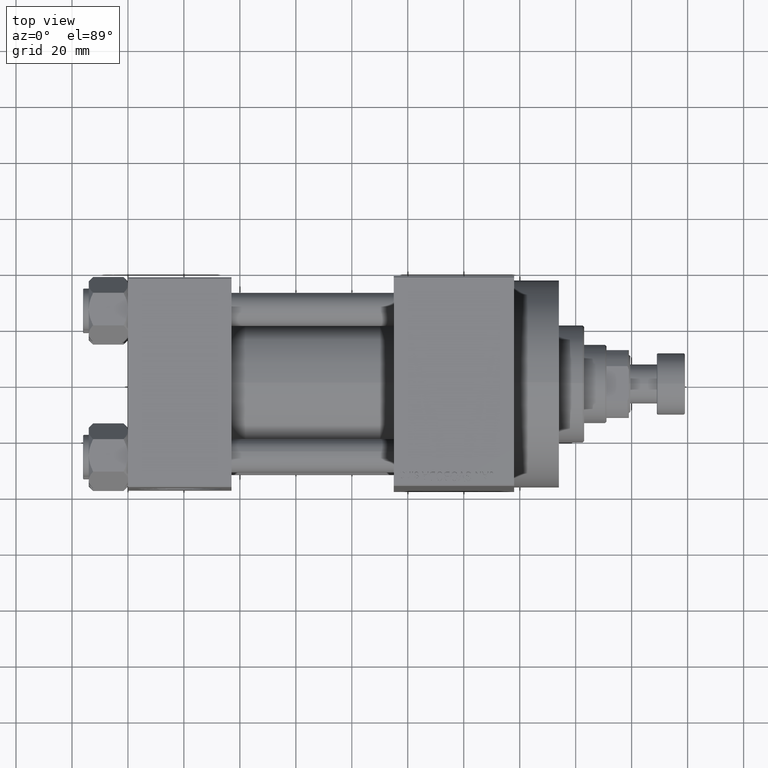
[diagram: clean part render]
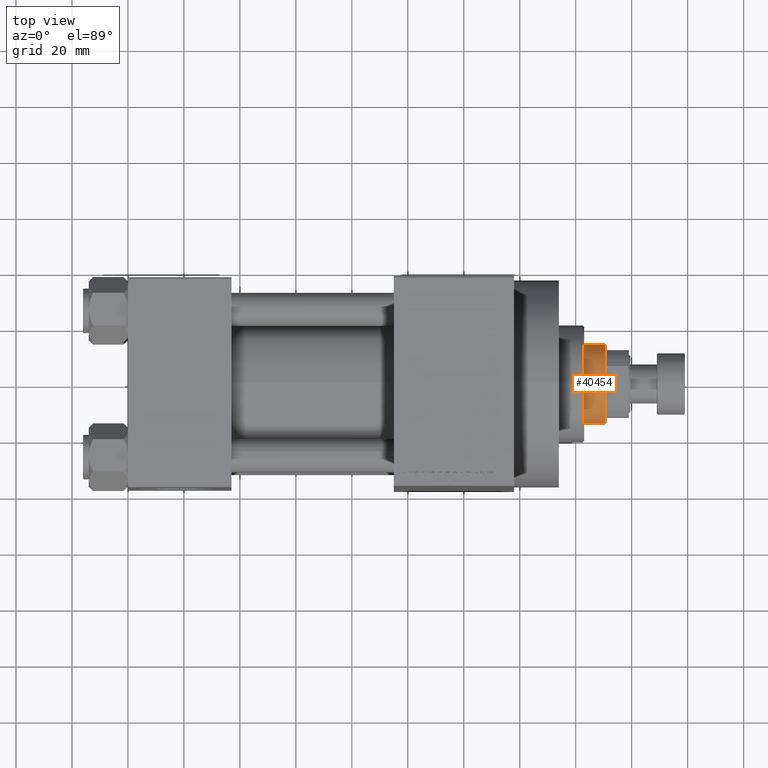
[diagram: same view with one face highlighted and labeled with its STEP entity id]
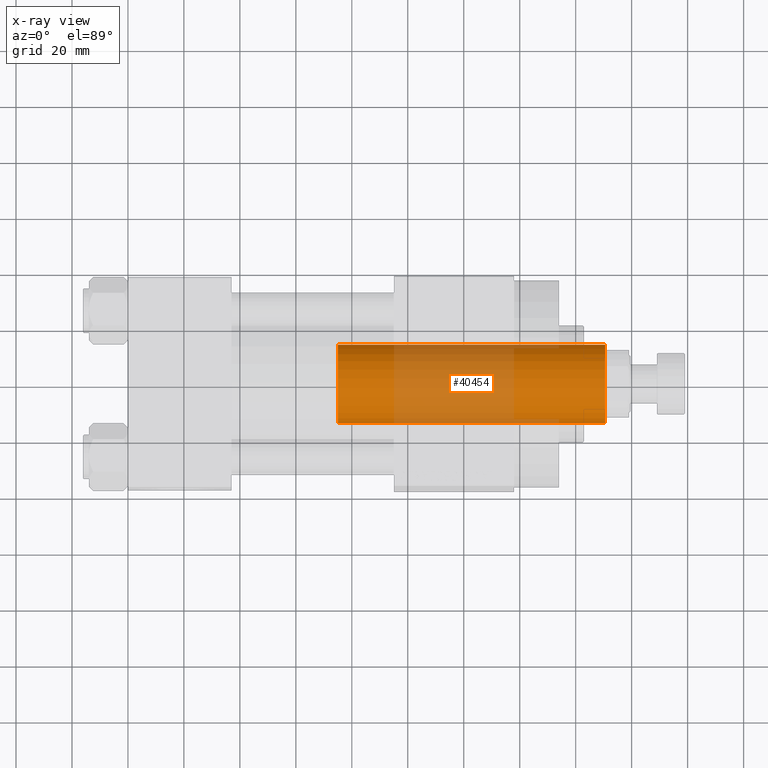
[diagram: x-ray of the same camera — body ghosted, the highlighted face saturated]
A machine part, top view. The second image highlights one B-rep face of the part: STEP entity #40454.
The next image is the same camera in x-ray: the body ghosted, the highlighted face saturated — about 47% of this face is hidden behind the body in this view.
In plain terms, the highlighted cylindrical surface (partial cylindrical patch) has radius 14 mm, axis along (-1, 0, 0).
Its self-contained STEP definition (entity closure, byte-faithful):
#1515 = LINE ( 'NONE', #16281, #11495 ) ;
#2268 = CARTESIAN_POINT ( 'NONE',  ( 0.000000000000000000, 0.000000000000000000, 133.5000000000000284 ) ) ;
#3946 = CARTESIAN_POINT ( 'NONE',  ( 0.000000000000000000, 0.000000000000000000, 38.00000000000000000 ) ) ;
#4250 = CARTESIAN_POINT ( 'NONE',  ( 14.00000000000000178, 1.714505518806294835E-15, 38.00000000000000000 ) ) ;
#5680 = DIRECTION ( 'NONE',  ( 0.000000000000000000, 0.000000000000000000, -1.000000000000000000 ) ) ;
#7015 = EDGE_CURVE ( 'NONE', #45900, #21945, #26740, .T. ) ;
#9244 = VERTEX_POINT ( 'NONE', #36994 ) ;
#9246 = DIRECTION ( 'NONE',  ( -0.000000000000000000, -0.000000000000000000, -1.000000000000000000 ) ) ;
#10929 = FACE_OUTER_BOUND ( 'NONE', #43507, .T. ) ;
#11171 = DIRECTION ( 'NONE',  ( -0.000000000000000000, -0.000000000000000000, -1.000000000000000000 ) ) ;
#11495 = VECTOR ( 'NONE', #9246, 1000.000000000000000 ) ;
#11794 = VECTOR ( 'NONE', #29632, 1000.000000000000000 ) ;
#13169 = AXIS2_PLACEMENT_3D ( 'NONE', #2268, #5680, #42957 ) ;
#13850 = VERTEX_POINT ( 'NONE', #36071 ) ;
#14862 = CARTESIAN_POINT ( 'NONE',  ( -14.00000000000000178, 0.000000000000000000, 134.0000000000000000 ) ) ;
#16281 = CARTESIAN_POINT ( 'NONE',  ( 14.00000000000000178, 1.714505518806294835E-15, 134.0000000000000000 ) ) ;
#21945 = VERTEX_POINT ( 'NONE', #4250 ) ;
#22590 = DIRECTION ( 'NONE',  ( 0.000000000000000000, 0.000000000000000000, 1.000000000000000000 ) ) ;
#24249 = ORIENTED_EDGE ( 'NONE', *, *, #38564, .F. ) ;
#25699 = DIRECTION ( 'NONE',  ( -1.000000000000000000, 0.000000000000000000, 0.000000000000000000 ) ) ;
#26191 = CYLINDRICAL_SURFACE ( 'NONE', #34772, 14.00000000000000178 ) ;
#26307 = EDGE_CURVE ( 'NONE', #13850, #45900, #33284, .T. ) ;
#26740 = CIRCLE ( 'NONE', #38361, 14.00000000000000178 ) ;
#28066 = ORIENTED_EDGE ( 'NONE', *, *, #7015, .T. ) ;
#29632 = DIRECTION ( 'NONE',  ( -0.000000000000000000, -0.000000000000000000, -1.000000000000000000 ) ) ;
#33284 = LINE ( 'NONE', #14862, #11794 ) ;
#34092 = CIRCLE ( 'NONE', #13169, 14.00000000000000178 ) ;
#34772 = AXIS2_PLACEMENT_3D ( 'NONE', #40498, #11171, #25699 ) ;
#35710 = ORIENTED_EDGE ( 'NONE', *, *, #46681, .T. ) ;
#36071 = CARTESIAN_POINT ( 'NONE',  ( -14.00000000000000178, 0.000000000000000000, 133.5000000000000284 ) ) ;
#36477 = ORIENTED_EDGE ( 'NONE', *, *, #26307, .T. ) ;
#36994 = CARTESIAN_POINT ( 'NONE',  ( 14.00000000000000178, 1.714505518806294835E-15, 133.5000000000000284 ) ) ;
#38361 = AXIS2_PLACEMENT_3D ( 'NONE', #3946, #22590, #41480 ) ;
#38564 = EDGE_CURVE ( 'NONE', #9244, #21945, #1515, .T. ) ;
#40454 = ADVANCED_FACE ( 'NONE', ( #10929 ), #26191, .T. ) ;
#40498 = CARTESIAN_POINT ( 'NONE',  ( 0.000000000000000000, 0.000000000000000000, 134.0000000000000000 ) ) ;
#41480 = DIRECTION ( 'NONE',  ( 1.000000000000000000, 0.000000000000000000, 0.000000000000000000 ) ) ;
#41893 = CARTESIAN_POINT ( 'NONE',  ( -14.00000000000000178, 0.000000000000000000, 38.00000000000000000 ) ) ;
#42957 = DIRECTION ( 'NONE',  ( 1.000000000000000000, 0.000000000000000000, 0.000000000000000000 ) ) ;
#43507 = EDGE_LOOP ( 'NONE', ( #24249, #35710, #36477, #28066 ) ) ;
#45900 = VERTEX_POINT ( 'NONE', #41893 ) ;
#46681 = EDGE_CURVE ( 'NONE', #9244, #13850, #34092, .T. ) ;